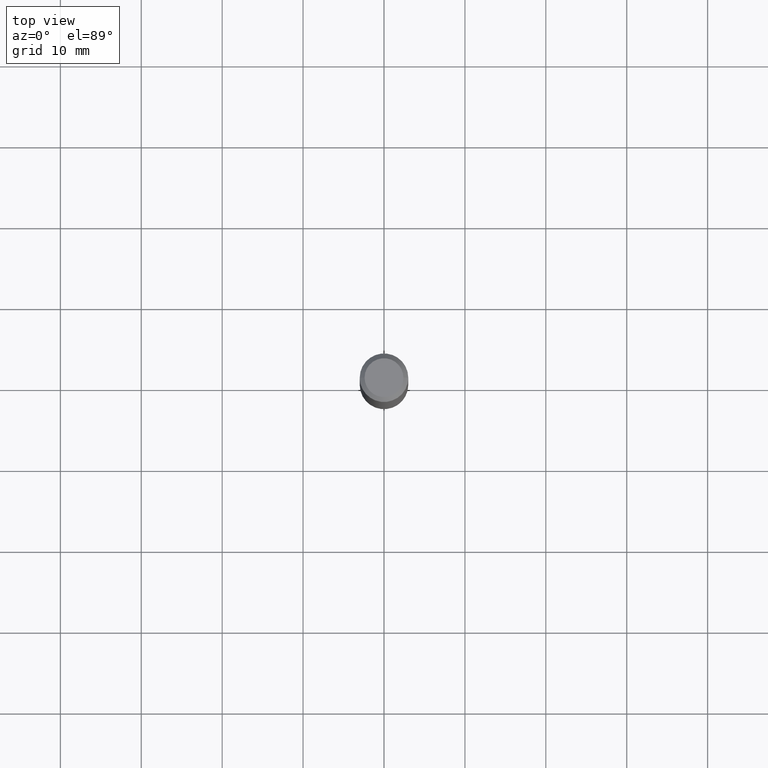
[diagram: clean part render]
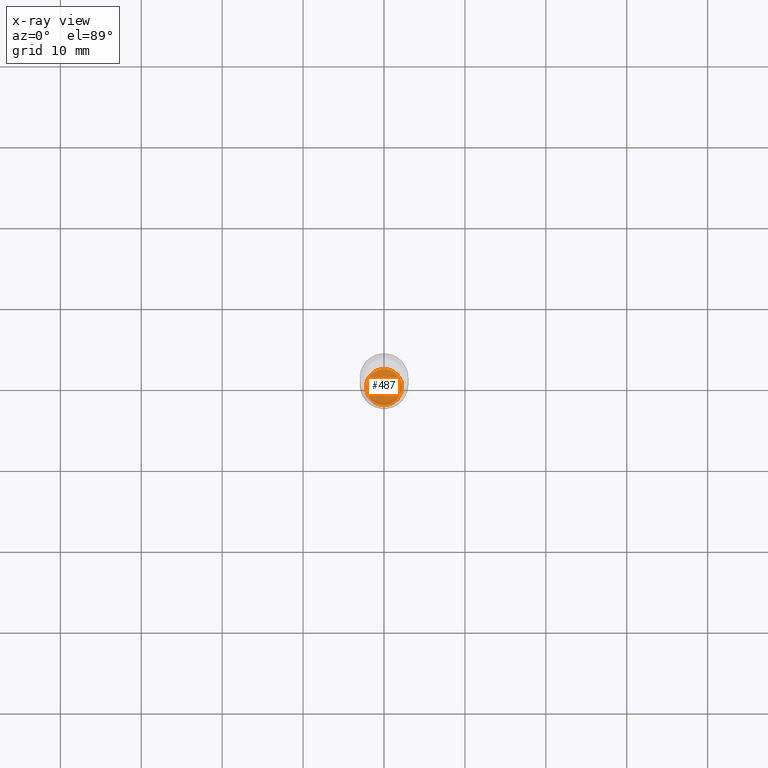
[diagram: x-ray — body ghosted, one internal face saturated and labeled with its STEP entity id]
A machine part, top view, then the same camera in x-ray: the body is ghosted and one INTERNAL B-rep face — a face not visible from any outside direction — is saturated and labeled: STEP entity #487.
In plain terms, the highlighted planar face has unit normal (-0, 0, 1).
Its self-contained STEP definition (entity closure, byte-faithful):
#5 = VERTEX_POINT ( 'NONE', #244 ) ;
#61 = EDGE_LOOP ( 'NONE', ( #199, #72 ) ) ;
#67 = AXIS2_PLACEMENT_3D ( 'NONE', #165, #323, #161 ) ;
#72 = ORIENTED_EDGE ( 'NONE', *, *, #387, .F. ) ;
#149 = CARTESIAN_POINT ( 'NONE',  ( 6.498344258675763520E-29, -9.277913361707891265E-15, -2.657300000000000217 ) ) ;
#161 = DIRECTION ( 'NONE',  ( 1.000000000000000000, -6.982962677686273810E-15, 0.000000000000000000 ) ) ;
#165 = CARTESIAN_POINT ( 'NONE',  ( 6.498344258675763520E-29, -9.277913361707891265E-15, -2.657300000000000217 ) ) ;
#189 = DIRECTION ( 'NONE',  ( 1.000000000000000000, -6.982962677686273810E-15, 0.000000000000000000 ) ) ;
#195 = CIRCLE ( 'NONE', #259, 0.08809999999999999776 ) ;
#196 = VERTEX_POINT ( 'NONE', #256 ) ;
#199 = ORIENTED_EDGE ( 'NONE', *, *, #317, .F. ) ;
#244 = CARTESIAN_POINT ( 'NONE',  ( 0.08809999999999999776, -9.893112373612052788E-15, -2.657300000000000217 ) ) ;
#256 = CARTESIAN_POINT ( 'NONE',  ( -0.08809999999999999776, -8.649275984329132112E-15, -2.657300000000000217 ) ) ;
#259 = AXIS2_PLACEMENT_3D ( 'NONE', #149, #262, #189 ) ;
#262 = DIRECTION ( 'NONE',  ( -2.445468806185136597E-29, 3.491481338843145583E-15, 1.000000000000000000 ) ) ;
#312 = CARTESIAN_POINT ( 'NONE',  ( 6.498344258675763520E-29, -9.277913361707891265E-15, -2.657300000000000217 ) ) ;
#317 = EDGE_CURVE ( 'NONE', #5, #196, #195, .T. ) ;
#323 = DIRECTION ( 'NONE',  ( -2.445468806185136597E-29, 3.491481338843145583E-15, 1.000000000000000000 ) ) ;
#330 = AXIS2_PLACEMENT_3D ( 'NONE', #312, #389, #472 ) ;
#361 = PLANE ( 'NONE',  #330 ) ;
#385 = CIRCLE ( 'NONE', #67, 0.08809999999999999776 ) ;
#387 = EDGE_CURVE ( 'NONE', #196, #5, #385, .T. ) ;
#389 = DIRECTION ( 'NONE',  ( -2.438088387897960049E-29, 3.491481338843145188E-15, 1.000000000000000000 ) ) ;
#402 = FACE_OUTER_BOUND ( 'NONE', #61, .T. ) ;
#472 = DIRECTION ( 'NONE',  ( 1.000000000000000000, -6.982962677686265922E-15, 4.876176775795935793E-29 ) ) ;
#487 = ADVANCED_FACE ( 'NONE', ( #402 ), #361, .F. ) ;